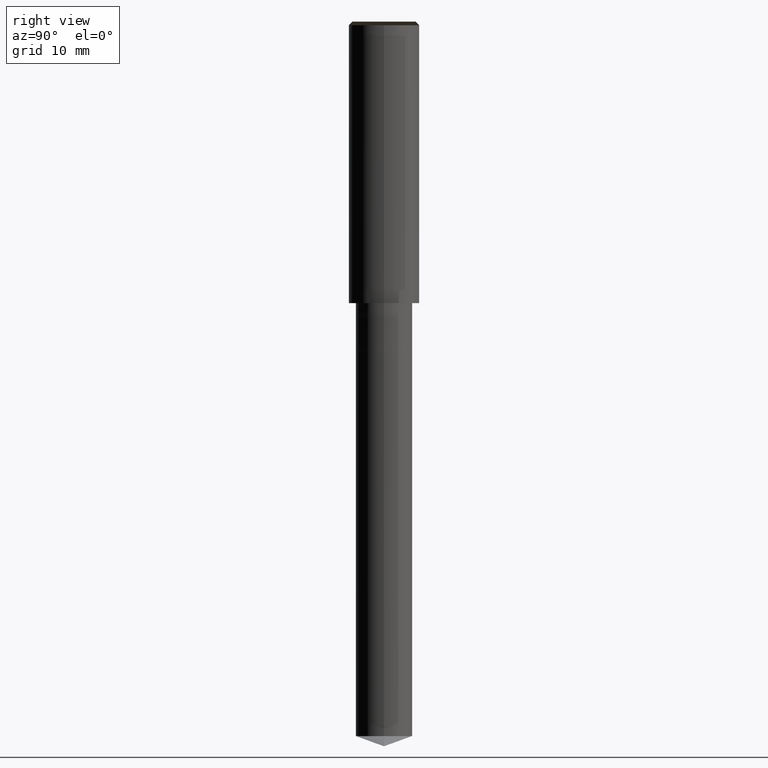
[diagram: clean part render]
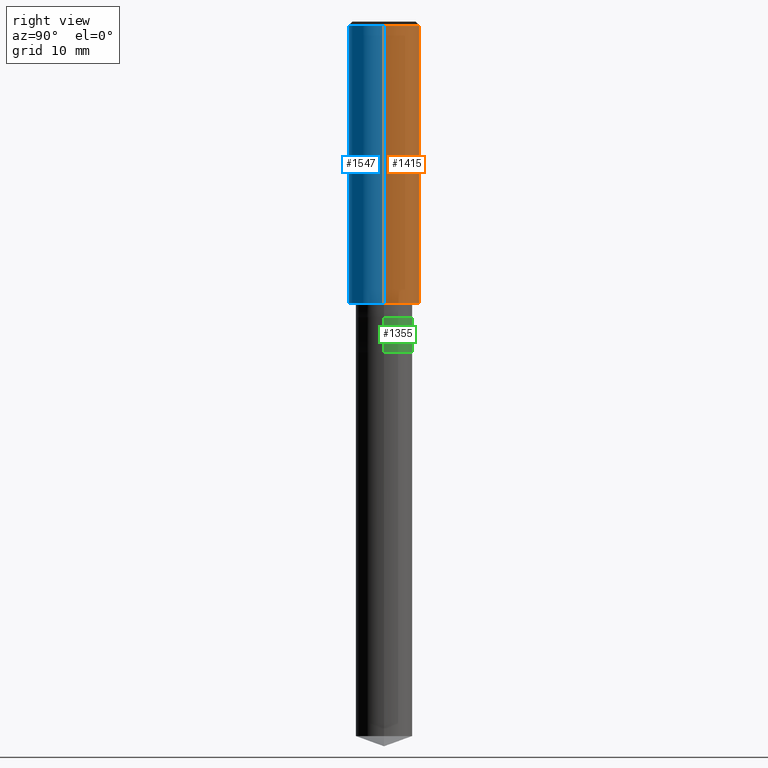
[diagram: same view with three faces highlighted in distinct colors, each labeled with its STEP entity id]
A machine part, right view with three faces highlighted in distinct colors.
Their STEP definitions:

[orange] entity #1415 — the highlighted face is a freeform B-spline surface patch.
#1176=CARTESIAN_POINT('',(5.0,0.0,0.0));
#1177=CARTESIAN_POINT('',(5.0,5.0,0.0));
#1178=CARTESIAN_POINT('',(0.0,5.0,0.0));
#1179=CARTESIAN_POINT('',(-5.0,5.0,0.0));
#1180=CARTESIAN_POINT('',(-5.0,0.0,0.0));
#1181=CARTESIAN_POINT('',(5.0,0.0,39.5));
#1182=CARTESIAN_POINT('',(5.0,5.0,39.5));
#1183=CARTESIAN_POINT('',(0.0,5.0,39.5));
#1184=CARTESIAN_POINT('',(-5.0,5.0,39.5));
#1185=CARTESIAN_POINT('',(-5.0,0.0,39.5));
#1396=(
BOUNDED_SURFACE()
B_SPLINE_SURFACE(1,2,(
(#1176,#1177,#1178,#1179,#1180),
(#1181,#1182,#1183,#1184,#1185)
), .UNSPECIFIED.,.F.,.F.,.F.)
B_SPLINE_SURFACE_WITH_KNOTS((2,2),(3,2,3),(
0.0,1.0),(
0.0,0.5,1.0), .UNSPECIFIED.)
GEOMETRIC_REPRESENTATION_ITEM()
RATIONAL_B_SPLINE_SURFACE(((1.0,0.707106781187,1.0,0.707106781187,1.0),
(1.0,0.707106781187,1.0,0.707106781187,1.0)
))
REPRESENTATION_ITEM('')
SURFACE()
);
#1397=(
BOUNDED_CURVE()
B_SPLINE_CURVE(2,(#1180,#1179,#1178,#1177,#1176),.UNSPECIFIED.,.F.,.F.)
B_SPLINE_CURVE_WITH_KNOTS((3,2,3),
(0.0,0.5,1.0),.UNSPECIFIED.)
CURVE()
GEOMETRIC_REPRESENTATION_ITEM()
RATIONAL_B_SPLINE_CURVE((1.0,0.707106781187,1.0,0.707106781187,1.0))
REPRESENTATION_ITEM('')
);
#1398=(
BOUNDED_CURVE()
B_SPLINE_CURVE(1,(#1176,#1181),.UNSPECIFIED.,.F.,.F.)
B_SPLINE_CURVE_WITH_KNOTS((2,2),
(0.0,1.0),.UNSPECIFIED.)
CURVE()
GEOMETRIC_REPRESENTATION_ITEM()
RATIONAL_B_SPLINE_CURVE((1.0,1.0))
REPRESENTATION_ITEM('')
);
#1399=(
BOUNDED_CURVE()
B_SPLINE_CURVE(2,(#1181,#1182,#1183,#1184,#1185),.UNSPECIFIED.,.F.,.F.)
B_SPLINE_CURVE_WITH_KNOTS((3,2,3),
(0.0,0.5,1.0),.UNSPECIFIED.)
CURVE()
GEOMETRIC_REPRESENTATION_ITEM()
RATIONAL_B_SPLINE_CURVE((1.0,0.707106781187,1.0,0.707106781187,1.0))
REPRESENTATION_ITEM('')
);
#1400=(
BOUNDED_CURVE()
B_SPLINE_CURVE(1,(#1185,#1180),.UNSPECIFIED.,.F.,.F.)
B_SPLINE_CURVE_WITH_KNOTS((2,2),
(0.0,1.0),.UNSPECIFIED.)
CURVE()
GEOMETRIC_REPRESENTATION_ITEM()
RATIONAL_B_SPLINE_CURVE((1.0,1.0))
REPRESENTATION_ITEM('')
);
#1401=VERTEX_POINT('',#1176);
#1402=VERTEX_POINT('',#1180);
#1403=VERTEX_POINT('',#1181);
#1404=VERTEX_POINT('',#1185);
#1405=EDGE_CURVE('',#1402,#1401,#1397,.T.);
#1406=EDGE_CURVE('',#1401,#1403,#1398,.T.);
#1407=EDGE_CURVE('',#1403,#1404,#1399,.T.);
#1408=EDGE_CURVE('',#1404,#1402,#1400,.T.);
#1409=ORIENTED_EDGE('',*,*,#1405,.T.);
#1410=ORIENTED_EDGE('',*,*,#1406,.T.);
#1411=ORIENTED_EDGE('',*,*,#1407,.T.);
#1412=ORIENTED_EDGE('',*,*,#1408,.T.);
#1413=EDGE_LOOP('',(#1409,#1410,#1411,#1412));
#1414=FACE_OUTER_BOUND('',#1413,.T.);
#1415=ADVANCED_FACE('',(#1414),#1396,.T.);

[blue] entity #1547 — the highlighted face is a freeform B-spline surface patch.
#1176=CARTESIAN_POINT('',(5.0,0.0,0.0));
#1180=CARTESIAN_POINT('',(-5.0,0.0,0.0));
#1181=CARTESIAN_POINT('',(5.0,0.0,39.5));
#1185=CARTESIAN_POINT('',(-5.0,0.0,39.5));
#1198=CARTESIAN_POINT('',(-5.0,-5.0,0.0));
#1199=CARTESIAN_POINT('',(0.0,-5.0,0.0));
#1200=CARTESIAN_POINT('',(5.0,-5.0,0.0));
#1201=CARTESIAN_POINT('',(-5.0,-5.0,39.5));
#1202=CARTESIAN_POINT('',(0.0,-5.0,39.5));
#1203=CARTESIAN_POINT('',(5.0,-5.0,39.5));
#1528=(
BOUNDED_SURFACE()
B_SPLINE_SURFACE(1,2,(
(#1180,#1198,#1199,#1200,#1176),
(#1185,#1201,#1202,#1203,#1181)
), .UNSPECIFIED.,.F.,.F.,.F.)
B_SPLINE_SURFACE_WITH_KNOTS((2,2),(3,2,3),(
0.0,1.0),(
0.0,0.5,1.0), .UNSPECIFIED.)
GEOMETRIC_REPRESENTATION_ITEM()
RATIONAL_B_SPLINE_SURFACE(((1.0,0.707106781187,1.0,0.707106781187,1.0),
(1.0,0.707106781187,1.0,0.707106781187,1.0)
))
REPRESENTATION_ITEM('')
SURFACE()
);
#1529=(
BOUNDED_CURVE()
B_SPLINE_CURVE(2,(#1176,#1200,#1199,#1198,#1180),.UNSPECIFIED.,.F.,.F.)
B_SPLINE_CURVE_WITH_KNOTS((3,2,3),
(0.0,0.5,1.0),.UNSPECIFIED.)
CURVE()
GEOMETRIC_REPRESENTATION_ITEM()
RATIONAL_B_SPLINE_CURVE((1.0,0.707106781187,1.0,0.707106781187,1.0))
REPRESENTATION_ITEM('')
);
#1530=(
BOUNDED_CURVE()
B_SPLINE_CURVE(1,(#1180,#1185),.UNSPECIFIED.,.F.,.F.)
B_SPLINE_CURVE_WITH_KNOTS((2,2),
(0.0,1.0),.UNSPECIFIED.)
CURVE()
GEOMETRIC_REPRESENTATION_ITEM()
RATIONAL_B_SPLINE_CURVE((1.0,1.0))
REPRESENTATION_ITEM('')
);
#1531=(
BOUNDED_CURVE()
B_SPLINE_CURVE(2,(#1185,#1201,#1202,#1203,#1181),.UNSPECIFIED.,.F.,.F.)
B_SPLINE_CURVE_WITH_KNOTS((3,2,3),
(0.0,0.5,1.0),.UNSPECIFIED.)
CURVE()
GEOMETRIC_REPRESENTATION_ITEM()
RATIONAL_B_SPLINE_CURVE((1.0,0.707106781187,1.0,0.707106781187,1.0))
REPRESENTATION_ITEM('')
);
#1532=(
BOUNDED_CURVE()
B_SPLINE_CURVE(1,(#1181,#1176),.UNSPECIFIED.,.F.,.F.)
B_SPLINE_CURVE_WITH_KNOTS((2,2),
(0.0,1.0),.UNSPECIFIED.)
CURVE()
GEOMETRIC_REPRESENTATION_ITEM()
RATIONAL_B_SPLINE_CURVE((1.0,1.0))
REPRESENTATION_ITEM('')
);
#1533=VERTEX_POINT('',#1176);
#1534=VERTEX_POINT('',#1180);
#1535=VERTEX_POINT('',#1181);
#1536=VERTEX_POINT('',#1185);
#1537=EDGE_CURVE('',#1533,#1534,#1529,.T.);
#1538=EDGE_CURVE('',#1534,#1536,#1530,.T.);
#1539=EDGE_CURVE('',#1536,#1535,#1531,.T.);
#1540=EDGE_CURVE('',#1535,#1533,#1532,.T.);
#1541=ORIENTED_EDGE('',*,*,#1537,.T.);
#1542=ORIENTED_EDGE('',*,*,#1538,.T.);
#1543=ORIENTED_EDGE('',*,*,#1539,.T.);
#1544=ORIENTED_EDGE('',*,*,#1540,.T.);
#1545=EDGE_LOOP('',(#1541,#1542,#1543,#1544));
#1546=FACE_OUTER_BOUND('',#1545,.T.);
#1547=ADVANCED_FACE('',(#1546),#1528,.T.);

[green] entity #1355 — the highlighted face is a freeform B-spline surface patch.
#1154=CARTESIAN_POINT('',(4.0,0.0,-7.0));
#1155=CARTESIAN_POINT('',(4.0,4.0,-7.0));
#1156=CARTESIAN_POINT('',(0.0,4.0,-7.0));
#1157=CARTESIAN_POINT('',(-4.0,4.0,-7.0));
#1158=CARTESIAN_POINT('',(-4.0,0.0,-7.0));
#1166=CARTESIAN_POINT('',(4.0,0.0,-2.0));
#1167=CARTESIAN_POINT('',(4.0,4.0,-2.0));
#1168=CARTESIAN_POINT('',(0.0,4.0,-2.0));
#1169=CARTESIAN_POINT('',(-4.0,4.0,-2.0));
#1170=CARTESIAN_POINT('',(-4.0,0.0,-2.0));
#1336=(
BOUNDED_SURFACE()
B_SPLINE_SURFACE(1,2,(
(#1154,#1155,#1156,#1157,#1158),
(#1166,#1167,#1168,#1169,#1170)
), .UNSPECIFIED.,.F.,.F.,.F.)
B_SPLINE_SURFACE_WITH_KNOTS((2,2),(3,2,3),(
0.0,1.0),(
0.0,0.5,1.0), .UNSPECIFIED.)
GEOMETRIC_REPRESENTATION_ITEM()
RATIONAL_B_SPLINE_SURFACE(((1.0,0.707106781187,1.0,0.707106781187,1.0),
(1.0,0.707106781187,1.0,0.707106781187,1.0)
))
REPRESENTATION_ITEM('')
SURFACE()
);
#1337=(
BOUNDED_CURVE()
B_SPLINE_CURVE(2,(#1158,#1157,#1156,#1155,#1154),.UNSPECIFIED.,.F.,.F.)
B_SPLINE_CURVE_WITH_KNOTS((3,2,3),
(0.0,0.5,1.0),.UNSPECIFIED.)
CURVE()
GEOMETRIC_REPRESENTATION_ITEM()
RATIONAL_B_SPLINE_CURVE((1.0,0.707106781187,1.0,0.707106781187,1.0))
REPRESENTATION_ITEM('')
);
#1338=(
BOUNDED_CURVE()
B_SPLINE_CURVE(1,(#1154,#1166),.UNSPECIFIED.,.F.,.F.)
B_SPLINE_CURVE_WITH_KNOTS((2,2),
(0.0,1.0),.UNSPECIFIED.)
CURVE()
GEOMETRIC_REPRESENTATION_ITEM()
RATIONAL_B_SPLINE_CURVE((1.0,1.0))
REPRESENTATION_ITEM('')
);
#1339=(
BOUNDED_CURVE()
B_SPLINE_CURVE(2,(#1166,#1167,#1168,#1169,#1170),.UNSPECIFIED.,.F.,.F.)
B_SPLINE_CURVE_WITH_KNOTS((3,2,3),
(0.0,0.5,1.0),.UNSPECIFIED.)
CURVE()
GEOMETRIC_REPRESENTATION_ITEM()
RATIONAL_B_SPLINE_CURVE((1.0,0.707106781187,1.0,0.707106781187,1.0))
REPRESENTATION_ITEM('')
);
#1340=(
BOUNDED_CURVE()
B_SPLINE_CURVE(1,(#1170,#1158),.UNSPECIFIED.,.F.,.F.)
B_SPLINE_CURVE_WITH_KNOTS((2,2),
(0.0,1.0),.UNSPECIFIED.)
CURVE()
GEOMETRIC_REPRESENTATION_ITEM()
RATIONAL_B_SPLINE_CURVE((1.0,1.0))
REPRESENTATION_ITEM('')
);
#1341=VERTEX_POINT('',#1154);
#1342=VERTEX_POINT('',#1158);
#1343=VERTEX_POINT('',#1166);
#1344=VERTEX_POINT('',#1170);
#1345=EDGE_CURVE('',#1342,#1341,#1337,.T.);
#1346=EDGE_CURVE('',#1341,#1343,#1338,.T.);
#1347=EDGE_CURVE('',#1343,#1344,#1339,.T.);
#1348=EDGE_CURVE('',#1344,#1342,#1340,.T.);
#1349=ORIENTED_EDGE('',*,*,#1345,.T.);
#1350=ORIENTED_EDGE('',*,*,#1346,.T.);
#1351=ORIENTED_EDGE('',*,*,#1347,.T.);
#1352=ORIENTED_EDGE('',*,*,#1348,.T.);
#1353=EDGE_LOOP('',(#1349,#1350,#1351,#1352));
#1354=FACE_OUTER_BOUND('',#1353,.T.);
#1355=ADVANCED_FACE('',(#1354),#1336,.T.);